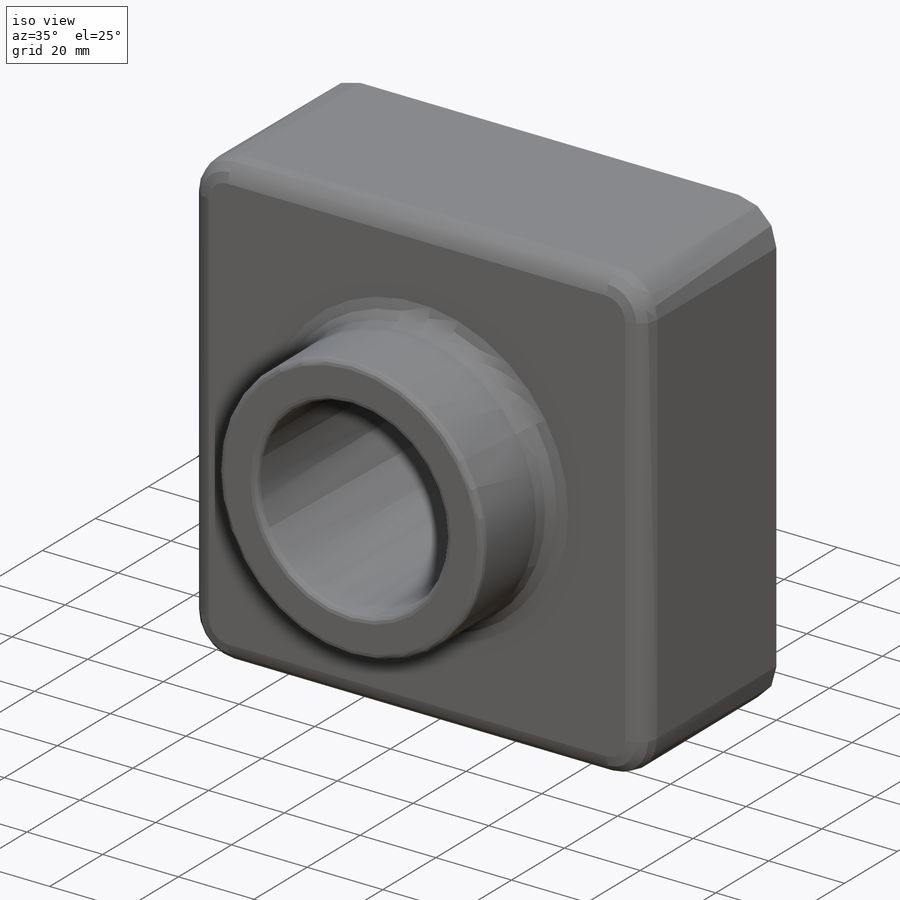
[diagram: iso view]
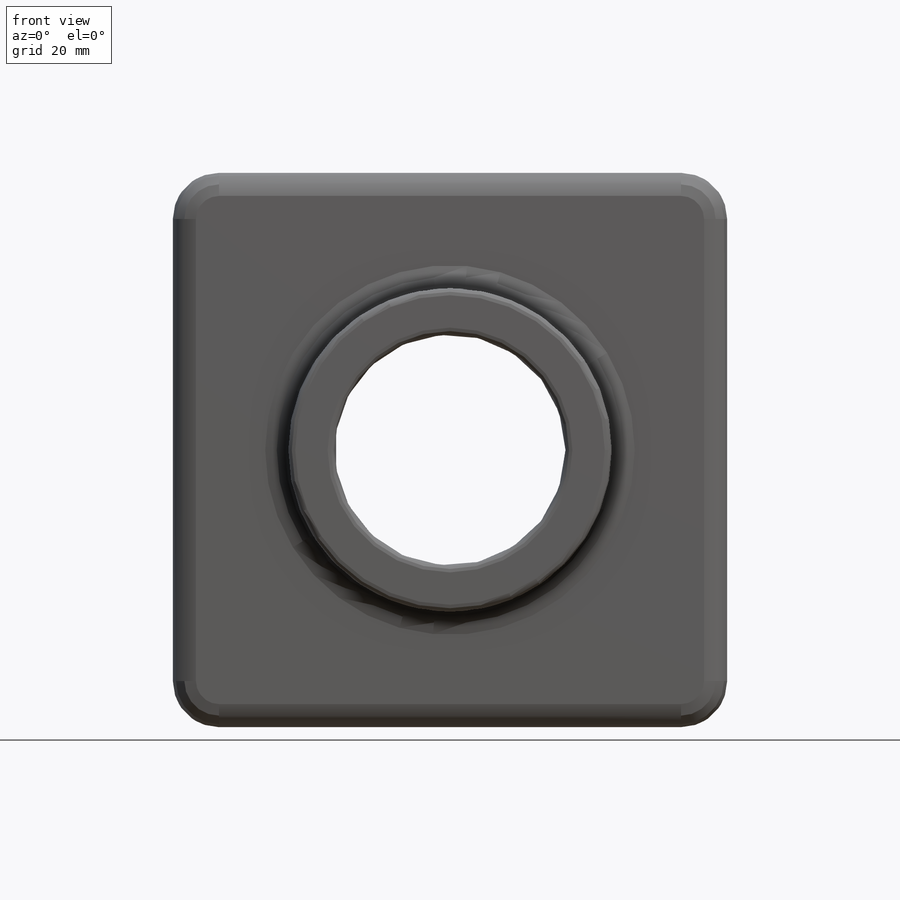
[diagram: front view]
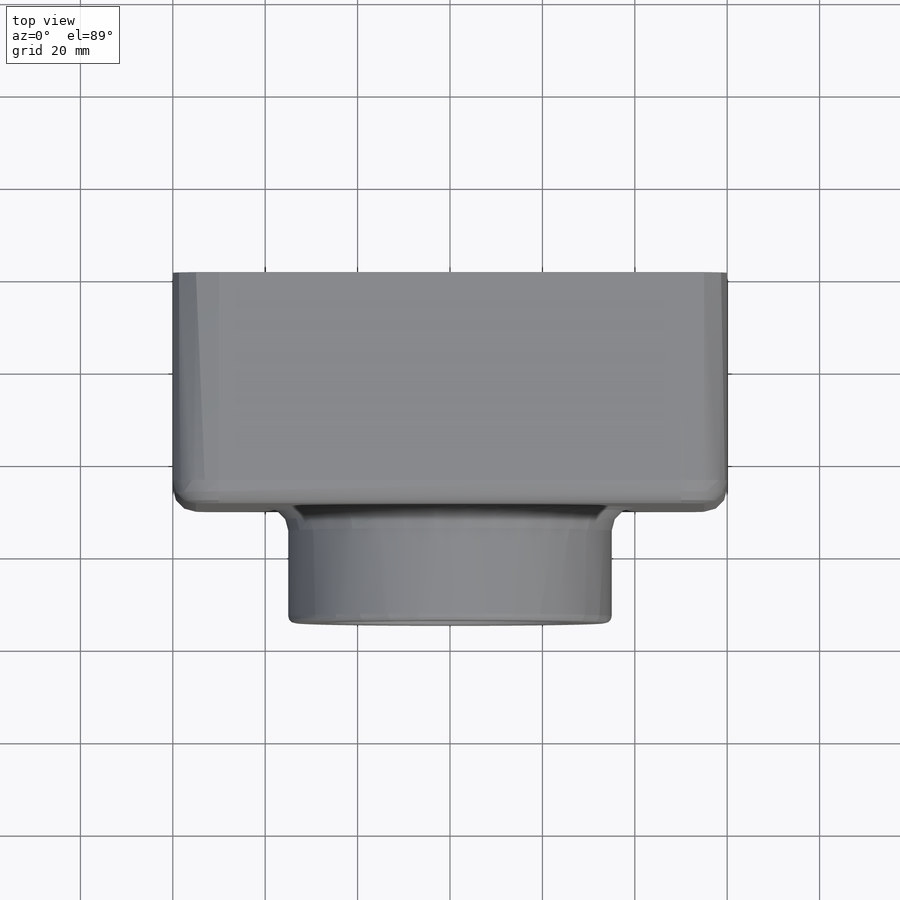
[diagram: top view]
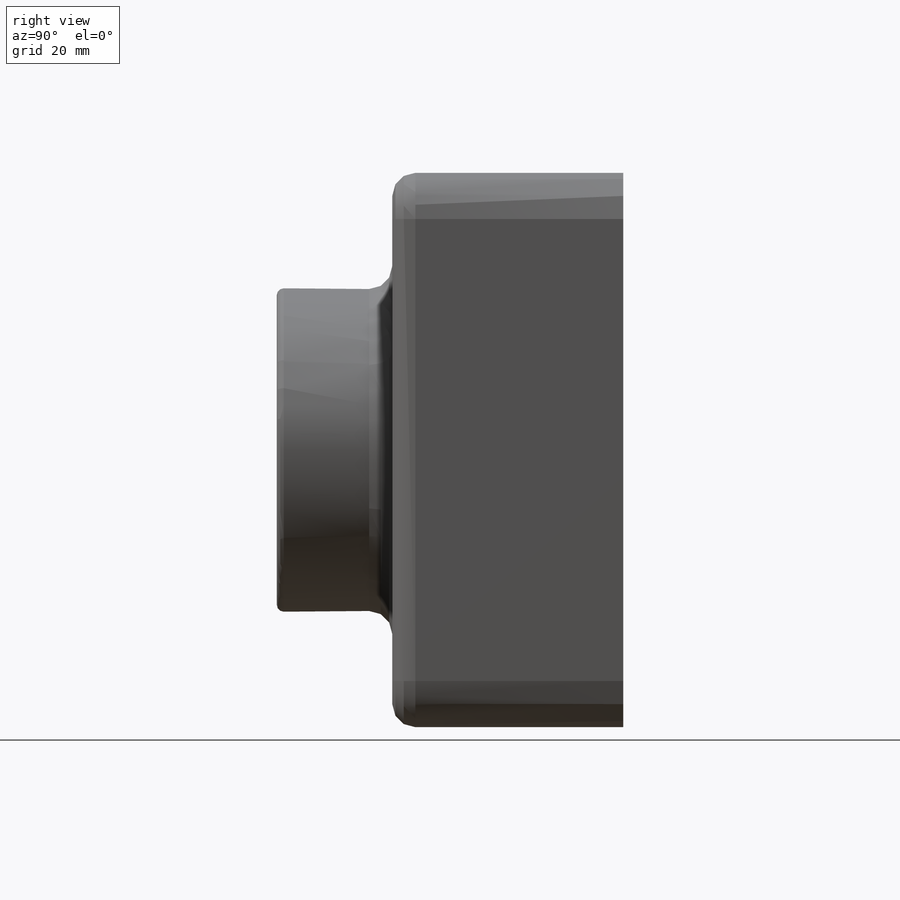
[diagram: right view]
SOLIDWORKS PART (.sldprt)
format: sldprt  version: not decoded by parser v0  size: 263,168 bytes
history: native  units: mm
features: sketch x3, fillet x3, extrude x2, material x1, cut_extrude x1, shell x1 (+12 scaffold rows collapsed)
feature tree (23):
  scaffold x12  (default folders/planes/origin — collapsed)
  material  "Material <not specified>"
  sketch  "Sketch1"  dims[D1=120.0mm D2=120.0mm]
  extrude  "Boss-Extrude1"  Depth=50mm
  sketch  "Sketch2"  dims[D1=70.0mm D2=60.0mm D3=60.0mm]
  extrude  "Boss-Extrude2"  Depth=25mm
  sketch  "Sketch6"  dims[D1=50.0mm]
  cut_extrude  "Cut-Extrude1"  [1 undecoded]
  fillet  "Fillet3"  Radius=10mm
  fillet  "Fillet4"  Radius=1.5mm
  fillet  "Fillet5"  Radius=5mm
  shell  "Shell1"  Thickness=2mm
decode coverage: 9 of 10 modeling features carry decoded parameters
note: 1 parameter value undecoded
note: suppression state not decoded; provenance and decode notes live in map.json
